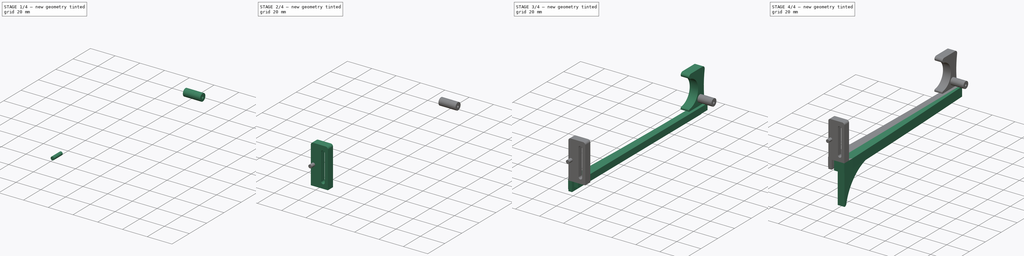
[diagram: build sequence overview — one tinted view per stage of 4, left to right]
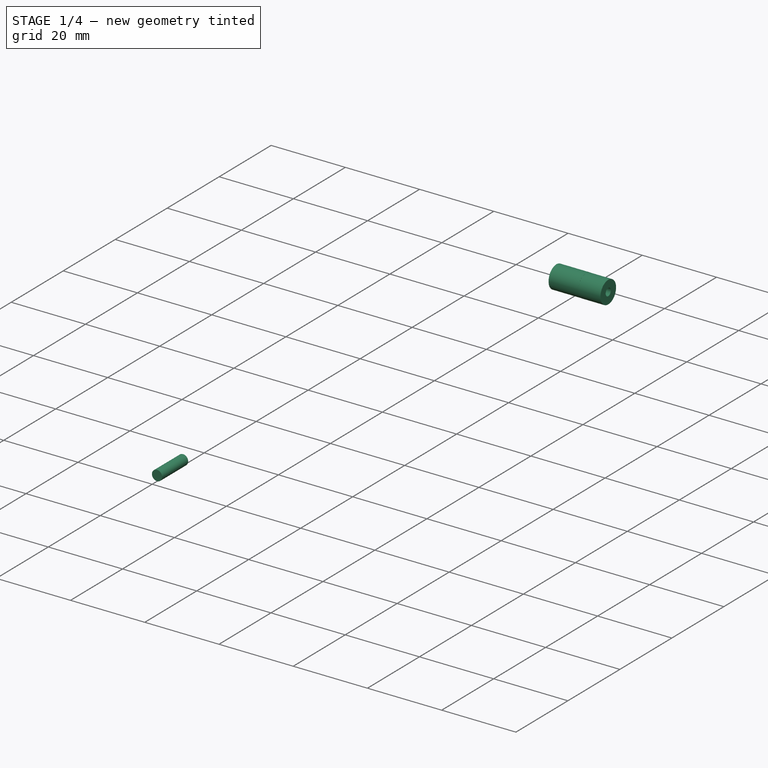
[diagram: stage 1 of 4 — iso view after this stage's code; geometry added in this stage tinted green]
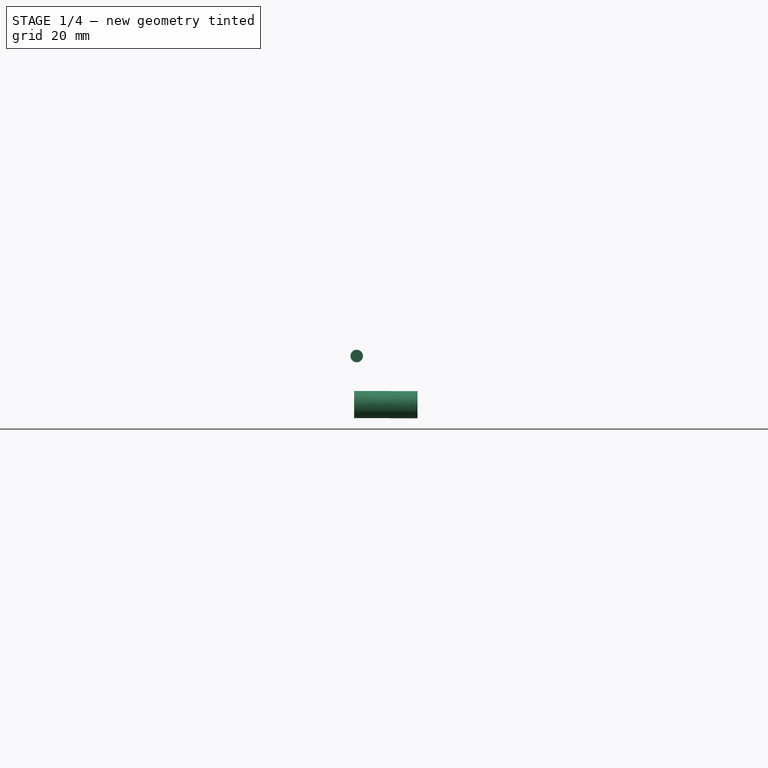
[diagram: stage 1 of 4 — front view after this stage's code; geometry added in this stage tinted green]
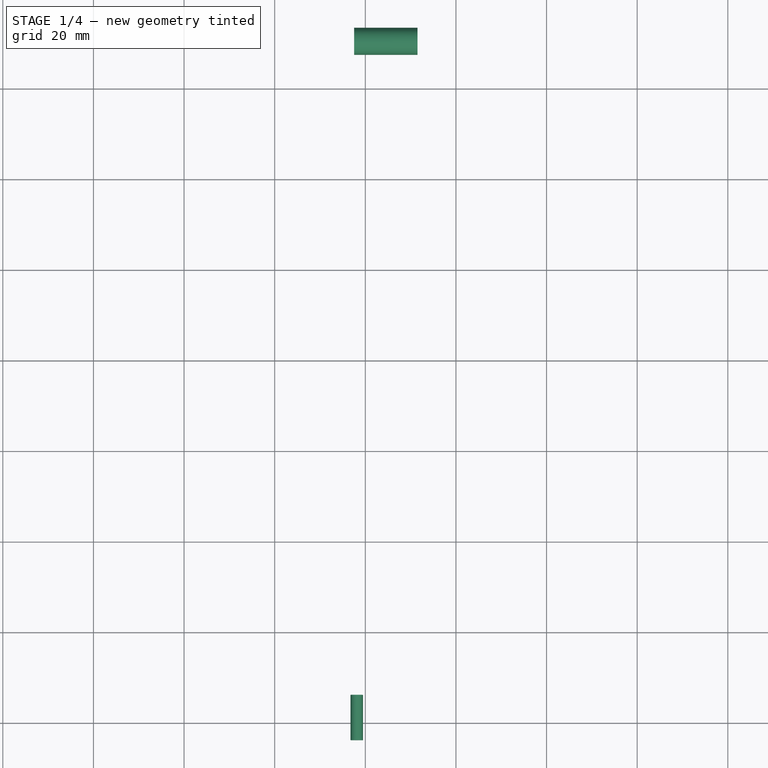
[diagram: stage 1 of 4 — top view after this stage's code; geometry added in this stage tinted green]
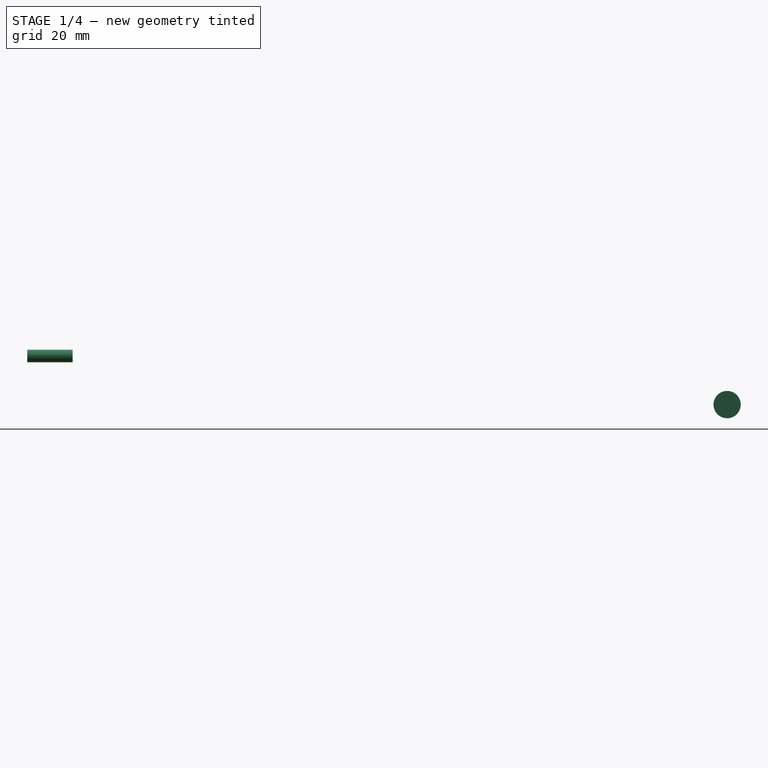
[diagram: stage 1 of 4 — right view after this stage's code; geometry added in this stage tinted green]
FCSTD DOCUMENT  (FreeCAD 0.20R29177 +426 (Git))
Label: Right_guide_drawing_515-1010
License: All rights reserved
LicenseURL: http://en.wikipedia.org/wiki/All_rights_reserved
objects: Sketcher::SketchObject×7, PartDesign::Pad×7, PartDesign::Body×4, App::DocumentObjectGroup×3, PartDesign::Fillet×2, Part::Cylinder×2, App::FeaturePython×1, PartDesign::CoordinateSystem×1, Part::Cut×1, Part::FeaturePython×1, Part::MultiFuse×1, App::Part×1
note: 35 computed .brp shape members not serialized (recipe doc carries the construction recipe); baked Part::Feature solids carry a one-line shape summary decoded from their .brp

FEATURE [Part::Cylinder] Cylinder002
  Angle = 360
  AttacherType = Attacher::AttachEngine3D
  FirstAngle = 0
  Height = 10
  Placement = pos=(-1.897,6.015,23.971) rot=(0.57735,-0.57735,0.57735;2.0944rad)
  Radius = 1.38
  SecondAngle = 0
FEATURE [Part::Cylinder] Cylinder
  Angle = 360
  AttacherType = Attacher::AttachEngine3D
  FirstAngle = 0
  Height = 8
  Placement = pos=(28.57,150.463,13.35) rot=(0,-1,0;1.5708rad)
  Radius = 3
  SecondAngle = 0
FEATURE [Part::FeaturePython] Tube  # WARN: FeaturePython — macro-defined, semantics opaque (R4)
  AttacherType = Attacher::AttachEngine3D
  Height = 6
  InnerRadius = 1
  OuterRadius = 3
  Placement = pos=(34.552,150.466,13.322) rot=(0.57735,0.57735,-0.57735;4.18879rad)
FEATURE [Part::MultiFuse] Fusion
  Placement = pos=(-23.031,0,-0.09) rot=(0,0,1;0rad)
  Shapes = -> [Tube,Cylinder]
FEATURE [App::DocumentObjectGroup] Parts
  Group = -> [Body003,Body004,Body007,Cut,Fusion]
FEATURE [App::Part] Assembly  label="rail_right"
  AssemblyType = Part::Link
  Group = -> [LCS_Origin,Constraints,Variables,Configurations,Body003,Body004,Parts,Body007,Pad004,Body009,Sketch012,Cylinder002,Tube,Cut,Cylinder,Fusion]
  Origin = -> Origin107
  Type = Assembly
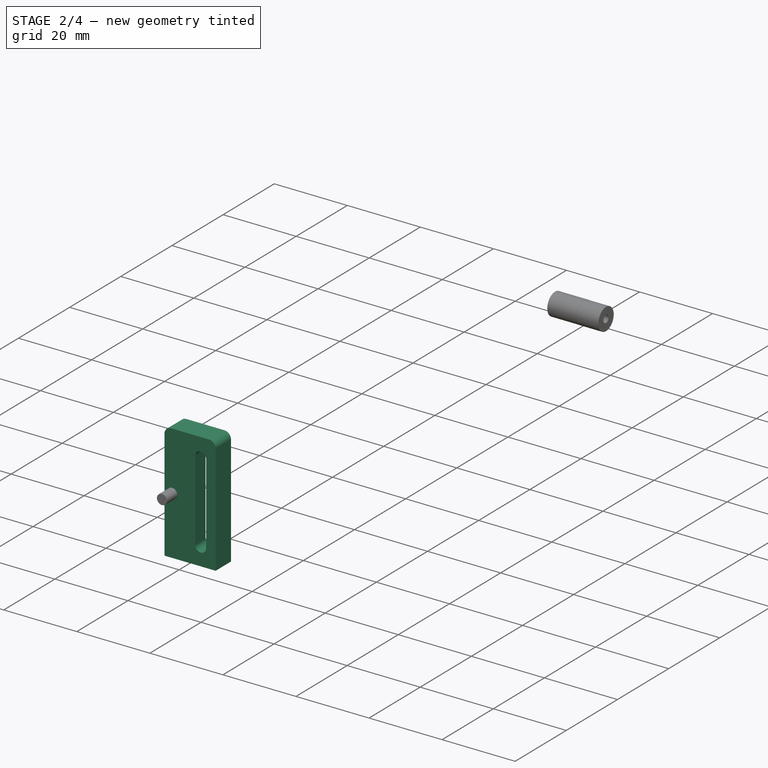
[diagram: stage 2 of 4 — iso view after this stage's code; geometry added in this stage tinted green]
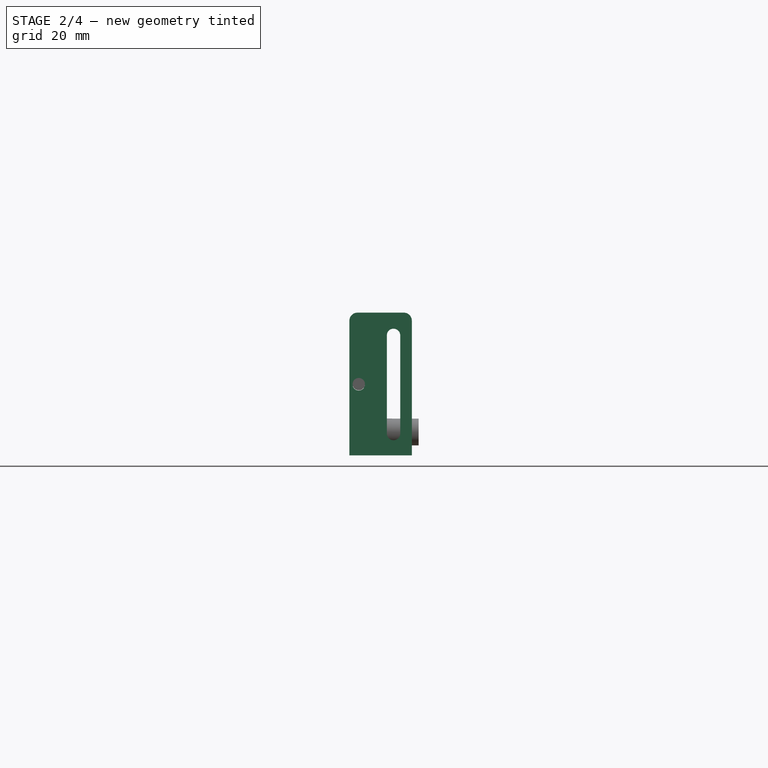
[diagram: stage 2 of 4 — front view after this stage's code; geometry added in this stage tinted green]
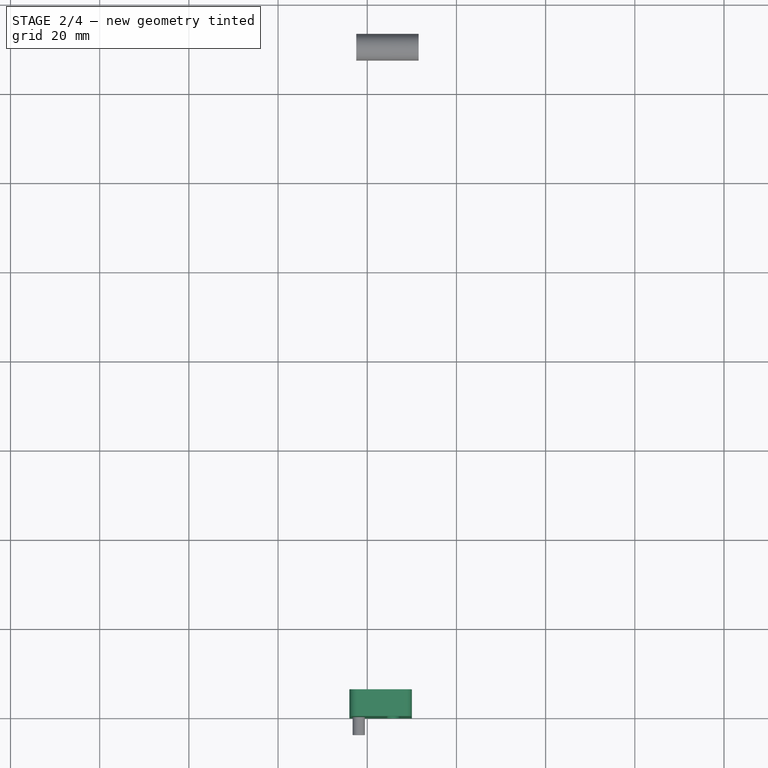
[diagram: stage 2 of 4 — top view after this stage's code; geometry added in this stage tinted green]
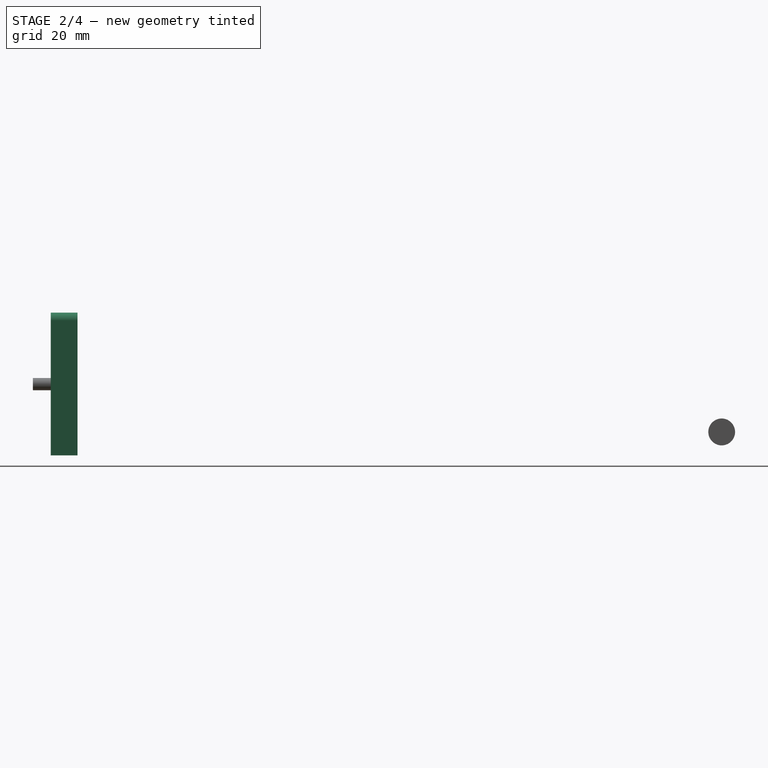
[diagram: stage 2 of 4 — right view after this stage's code; geometry added in this stage tinted green]
FEATURE [PartDesign::Body] Body003  label="rail"
  Group = -> [Sketch003,Pad,Sketch,Pad001,Sketch011,Pad003]
  Origin = -> Origin109
  Tip = -> Pad003
FEATURE [Sketcher::SketchObject] Sketch012
  FullyConstrained = true
  MapMode = 5
  Placement = pos=(0,0,0) rot=(1,0,0;1.5708rad)
  sketch-geometry (11):
    g0: LineSegment StartX=-4 StartY=0 StartZ=0 EndX=10 EndY=0 EndZ=0
    g1: LineSegment StartX=10 StartY=0 StartZ=0 EndX=10 EndY=-30.2 EndZ=0
    g2: LineSegment StartX=8.2 StartY=-32 StartZ=0 EndX=-2.2 EndY=-32 EndZ=0
    g3: LineSegment StartX=-4 StartY=-30.2 StartZ=0 EndX=-4 EndY=0 EndZ=0
    g4: ArcOfCircle CenterX=8.2 CenterY=-30.2 CenterZ=0 NormalX=0 NormalY=0 NormalZ=1 AngleXU=0 Radius=1.8 StartAngle=4.71239 EndAngle=6.28319
    g5: ArcOfCircle CenterX=-2.2 CenterY=-30.2 CenterZ=0 NormalX=0 NormalY=0 NormalZ=1 AngleXU=0 Radius=1.8 StartAngle=3.14159 EndAngle=4.71239
    g6: ArcOfCircle CenterX=5.9 CenterY=-26.9 CenterZ=0 NormalX=0 NormalY=0 NormalZ=1 AngleXU=0 Radius=1.5 StartAngle=3.14159 EndAngle=6.28319
    g7: ArcOfCircle CenterX=5.9 CenterY=-4.9 CenterZ=0 NormalX=0 NormalY=0 NormalZ=1 AngleXU=0 Radius=1.5 StartAngle=2e-16 EndAngle=3.14159
    g8: LineSegment StartX=7.4 StartY=-26.9 StartZ=0 EndX=7.4 EndY=-4.9 EndZ=0
    g9: LineSegment StartX=4.4 StartY=-4.9 StartZ=0 EndX=4.4 EndY=-26.9 EndZ=0
    g10: Circle CenterX=-1.9 CenterY=-15.9 CenterZ=0 NormalX=0 NormalY=0 NormalZ=1 AngleXU=0 Radius=1.375
  constraints (29):
    c: Coincident(g0,g1)
    c: Coincident(g3,g0)
    c: Horizontal(g0)
    c: Horizontal(g2)
    c: Vertical(g1)
    c: Vertical(g3)
    c: PointOnObject(g0,g-1)
    c: DistanceX(g0,g0) = 14
    c: DistanceX(g-1,g0) = 10
    c: Tangent(g2,g4) = 1.5708
    c: Tangent(g1,g4) = 1.5708
    c: Tangent(g3,g5) = 1.5708
    c: Tangent(g2,g5) = 1.5708
    c: DistanceY(g2,g1) = 1.8
    c: DistanceY(g2,g3) = 1.8
    c: Tangent(g6,g8) = -1.5708
    c: Tangent(g8,g7) = -1.5708
    c: Tangent(g7,g9) = -1.5708
    c: Tangent(g9,g6) = -1.5708
    c: Equal(g6,g7)
    c: Vertical(g8)
    c: DistanceX(g7,g7) = 3
    c: DistanceY(g6,g7) = 22
    c: DistanceY(g1,g1) = 30.2
    c: DistanceY(g7,g-1) = 4.9
    c: Diameter(g10) = 2.75
    c: DistanceY(g10,g7) = 11
    c: DistanceX(g0,g10) = 2.1
    c: DistanceX(g7,g0) = 4.1
FEATURE [PartDesign::Pad] Pad004  label="BaseGuide"
  Direction = (0,-1,-2e-16)
  Length = 6
  Length2 = 10
  Placement = pos=(0,0,0) rot=(1,0,0;1.5708rad)
  Profile = -> Sketch012
  ReferenceAxis = -> Sketch012 [N_Axis]
  Type = 0
FEATURE [PartDesign::Body] Body007  label="finger"
  Group = -> [Sketch019,Pad006]
  Origin = -> Origin114
  Placement = pos=(4.278,-0.01,-0.012) rot=(0,0,1;0rad)
  Tip = -> Pad006
FEATURE [Sketcher::SketchObject] Sketch020
  FullyConstrained = true
  MapMode = 5
  Placement = pos=(0,0,0) rot=(1,0,0;1.5708rad)
  Support = -> [XZ_Plane116]
  sketch-geometry (4):
    g0: ArcOfCircle CenterX=5.9 CenterY=35 CenterZ=0 NormalX=0 NormalY=0 NormalZ=1 AngleXU=0 Radius=3 StartAngle=4e-16 EndAngle=3.14159
    g1: ArcOfCircle CenterX=5.9 CenterY=13 CenterZ=0 NormalX=0 NormalY=0 NormalZ=1 AngleXU=0 Radius=3 StartAngle=3.14159 EndAngle=6.28319
    g2: LineSegment StartX=2.9 StartY=35 StartZ=0 EndX=2.9 EndY=13 EndZ=0
    g3: LineSegment StartX=8.9 StartY=13 StartZ=0 EndX=8.9 EndY=35 EndZ=0
  constraints (10):
    c: Tangent(g0,g2) = -1.5708
    c: Tangent(g2,g1) = -1.5708
    c: Tangent(g1,g3) = -1.5708
    c: Tangent(g3,g0) = -1.5708
    c: Equal(g0,g1)
    c: Vertical(g2)
    c: DistanceY(g1,g0) = 22
    c: DistanceX(g1,g1) = 6
    c: DistanceY(g-1,g1) = 13
    c: DistanceX(g-1,g1) = 5.9
FEATURE [PartDesign::Pad] Pad007
  Direction = (0,-1,-2e-16)
  Length = 2
  Length2 = 10
  Placement = pos=(0,0,0) rot=(1,0,0;1.5708rad)
  Profile = -> Sketch020
  ReferenceAxis = -> Sketch020 [N_Axis]
  Type = 0
FEATURE [PartDesign::Body] Body009  label="slotscrew"
  Group = -> [Sketch020,Pad007]
  Origin = -> Origin115
  Placement = pos=(-0.013,-4.05,-39.977) rot=(0,0,1;0rad)
  Tip = -> Pad007
FEATURE [Part::Cut] Cut  label="Base"
  Base = -> Pad004
  Placement = pos=(0,0.008,7.997) rot=(1,0,0;3.14159rad)
  Tool = -> Body009
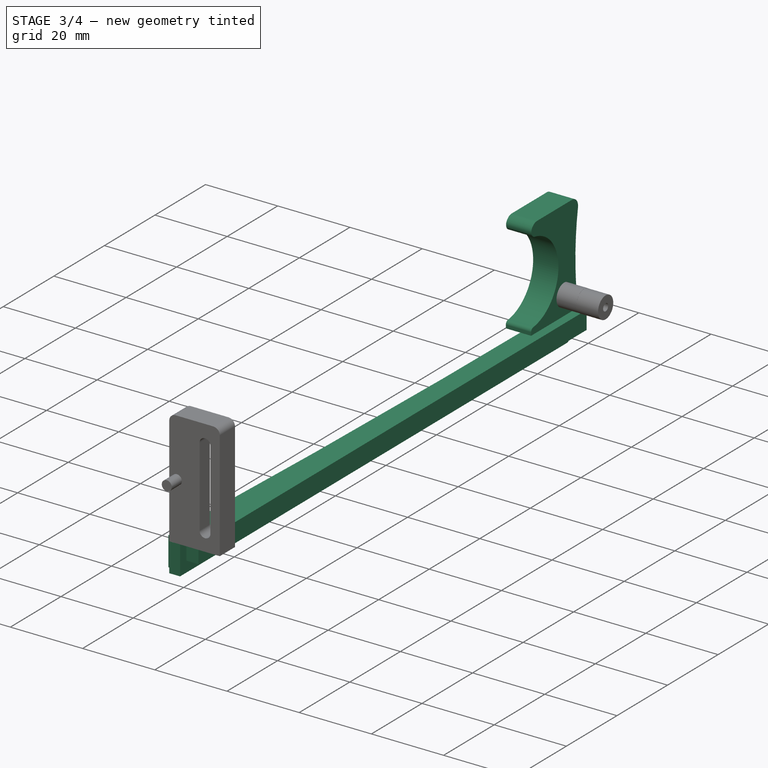
[diagram: stage 3 of 4 — iso view after this stage's code; geometry added in this stage tinted green]
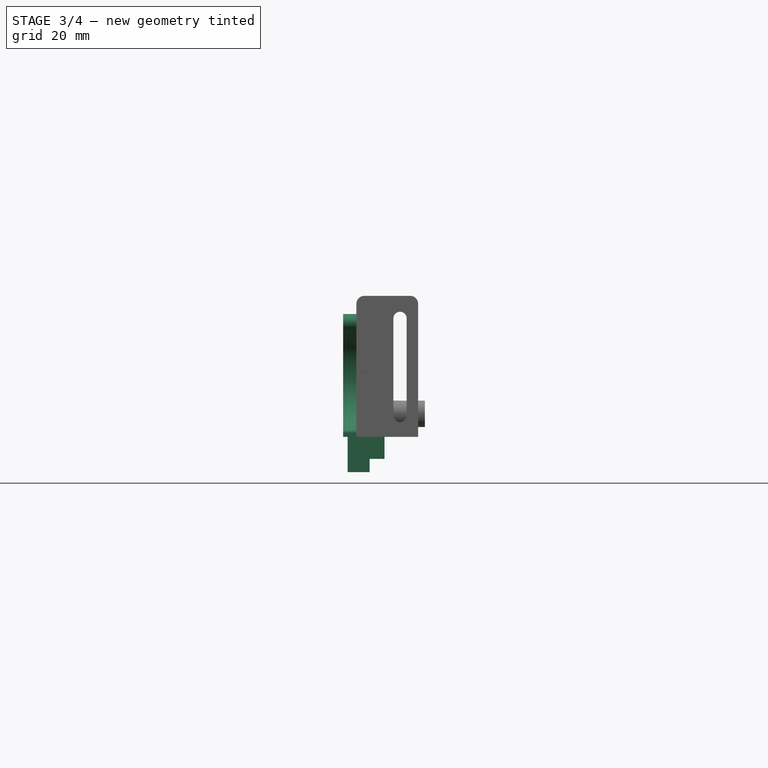
[diagram: stage 3 of 4 — front view after this stage's code; geometry added in this stage tinted green]
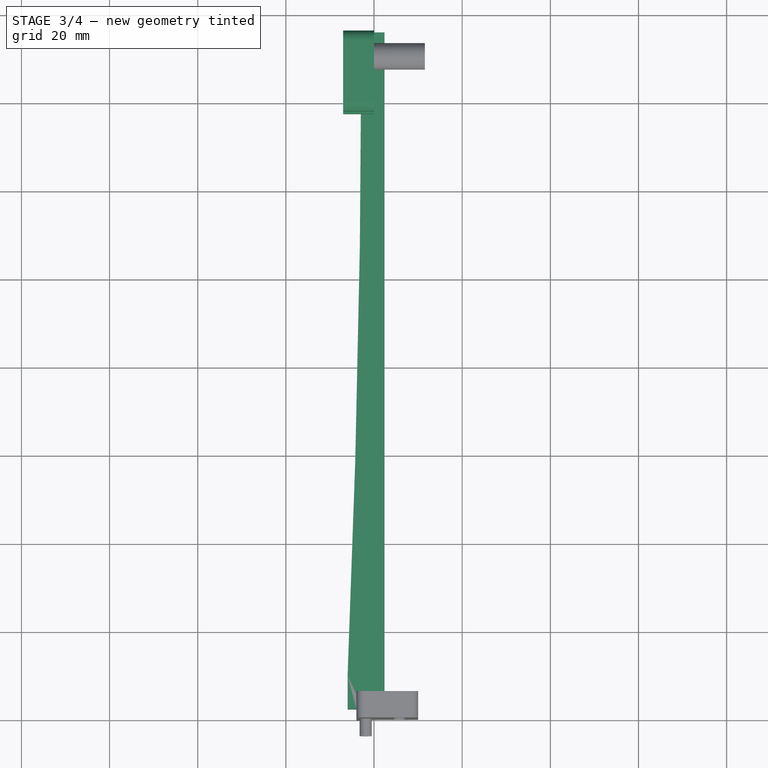
[diagram: stage 3 of 4 — top view after this stage's code; geometry added in this stage tinted green]
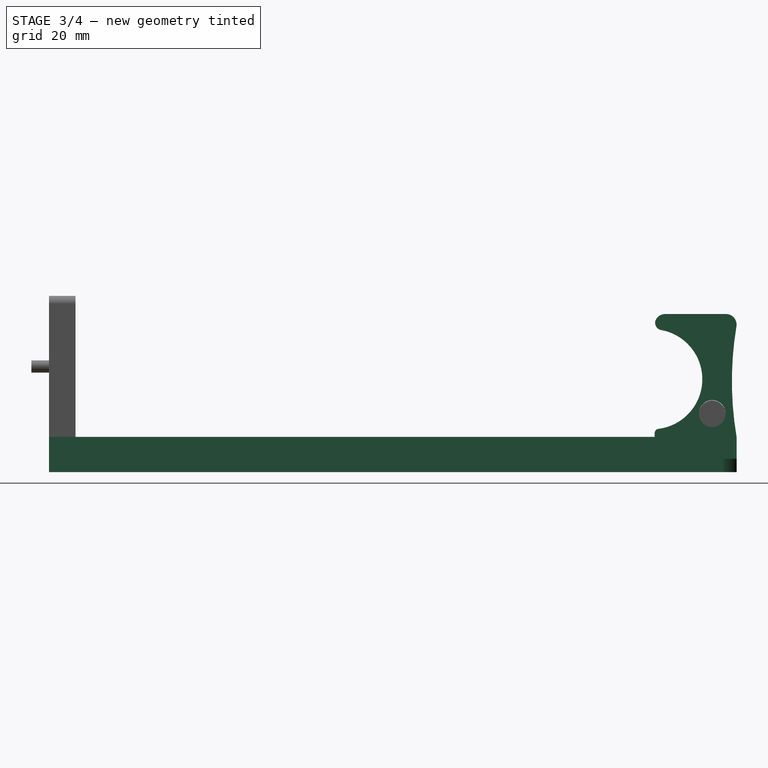
[diagram: stage 3 of 4 — right view after this stage's code; geometry added in this stage tinted green]
FEATURE [PartDesign::Body] Body004  label="sideforce"
  Group = -> [Sketch013,Pad005,Fillet,Fillet001]
  Origin = -> Origin110
  Placement = pos=(2,0,8) rot=(0,1,0;3.14159rad)
  Tip = -> Fillet001
FEATURE [Sketcher::SketchObject] Sketch003
  FullyConstrained = true
  MapMode = 5
  Support = -> [XY_Plane109]
  sketch-geometry (8):
    g0: LineSegment StartX=-1 StartY=0 StartZ=0 EndX=-1 EndY=153 EndZ=0
    g1: ArcOfCircle CenterX=-7.01053 CenterY=152.083 CenterZ=0 NormalX=0 NormalY=0 NormalZ=1 AngleXU=0 Radius=6.08 StartAngle=0.151318 EndAngle=0.699927
    g2: LineSegment StartX=-2.36 StartY=156 StartZ=0 EndX=-2.86 EndY=156 EndZ=0
    g3: ArcOfCircle CenterX=-3459.01 CenterY=157.297 CenterZ=0 NormalX=0 NormalY=0 NormalZ=1 AngleXU=0 Radius=3456.16 StartAngle=6.24055 EndAngle=6.28281
    g4: LineSegment StartX=-4 StartY=0 StartZ=0 EndX=-4 EndY=2.5 EndZ=0
    g5: LineSegment StartX=-4 StartY=2.5 StartZ=0 EndX=-6 EndY=2.5 EndZ=0
    g6: LineSegment StartX=-4 StartY=0 StartZ=0 EndX=-1 EndY=0 EndZ=0
    g7: LineSegment StartX=-6 StartY=10 StartZ=0 EndX=-6 EndY=2.5 EndZ=0
  constraints (27):
    c: Vertical(g0)
    c: Coincident(g1,g0)
    c: Coincident(g2,g1)
    c: Horizontal(g2)
    c: Coincident(g3,g2)
    c: DistanceX(g2,g2) = 0.5
    c: Diameter(g3) = 6912.31
    c: PointOnObject(g6,g-1)
    c: Vertical(g4)
    c: Coincident(g5,g4)
    c: Horizontal(g5)
    c: Coincident(g6,g4)
    c: Coincident(g7,g3)
    c: Coincident(g7,g5)
    c: DistanceX(g6,g6) = 3
    c: Vertical(g7)
    c: DistanceX(g5,g5) = 2
    c: DistanceY(g7,g7) = 7.5
    c: DistanceY(g4,g4) = 2.5
    c: DistanceY(g4,g-1) = 0
    c: DistanceY(g3,g2) = 146
    c: DistanceY(g0,g0) = 153
    c: DistanceX(g0,g-1) = 1
    c: DistanceX(g6,g-1) = 1
    c: DistanceY(g6,g0) = 0
    c: Radius(g1) = 6.08
    c: DistanceX(g1,g0) = 1.36
FEATURE [PartDesign::Pad] Pad
  Direction = (0,0,1)
  Length = 8
  Length2 = 10
  Profile = -> Sketch003
  ReferenceAxis = -> Sketch003 [N_Axis]
  Type = 0
FEATURE [Sketcher::SketchObject] Sketch
  AttachmentOffset = pos=(0,0,3) rot=(0,0,1;0rad)
  FullyConstrained = true
  MapMode = 5
  Placement = pos=(0,0,3) rot=(0,0,1;0rad)
  Support = -> [XY_Plane109]
  sketch-geometry (4):
    g0: LineSegment StartX=-2.36 StartY=2.5 StartZ=0 EndX=2.36 EndY=2.5 EndZ=0
    g1: LineSegment StartX=2.36 StartY=2.5 StartZ=0 EndX=2.36 EndY=156 EndZ=0
    g2: LineSegment StartX=2.36 StartY=156 StartZ=0 EndX=-2.36 EndY=156 EndZ=0
    g3: LineSegment StartX=-2.36 StartY=156 StartZ=0 EndX=-2.36 EndY=2.5 EndZ=0
  constraints (12):
    c: Coincident(g0,g1)
    c: Coincident(g1,g2)
    c: Coincident(g2,g3)
    c: Coincident(g3,g0)
    c: Horizontal(g0)
    c: Horizontal(g2)
    c: Vertical(g1)
    c: Vertical(g3)
    c: DistanceX(g2,g2) = 4.72
    c: DistanceY(g0,g-1) = -2.5
    c: DistanceX(g0,g-1) = 2.36
    c: DistanceY(g1,g1) = 153.5
FEATURE [PartDesign::Pad] Pad001
  BaseFeature = -> Pad
  Direction = (0,0,1)
  Length = 5
  Length2 = 10
  Profile = -> Sketch
  ReferenceAxis = -> Sketch [N_Axis]
  Type = 0
FEATURE [App::DocumentObjectGroup] Configurations
FEATURE [App::FeaturePython] Variables  # WARN: FeaturePython — macro-defined, semantics opaque (R4)
  Type = App::PropertyContainer
FEATURE [App::DocumentObjectGroup] Constraints
FEATURE [PartDesign::CoordinateSystem] LCS_Origin
  AttacherType = Attacher::AttachEngine3D
  MapMode = 2
  Support = -> [X_Axis107]
FEATURE [Sketcher::SketchObject] Sketch019
  FullyConstrained = false
  MapMode = 5
  Placement = pos=(0,0,0) rot=(-0.57735,0.57735,0.57735;4.18879rad)
  Support = -> [YZ_Plane114]
  sketch-geometry (10):
    g0: LineSegment StartX=-156.003 StartY=8.00103 StartZ=0 EndX=-137.423 EndY=8.00103 EndZ=0
    g1: LineSegment StartX=-137.423 StartY=8.00103 StartZ=0 EndX=-137.423 EndY=8.88796 EndZ=0
    g2: LineSegment StartX=-139.803 StartY=35.8702 StartZ=0 EndX=-153.603 EndY=35.8702 EndZ=0
    g3: ArcOfCircle CenterX=-136.888 CenterY=21.0784 CenterZ=0 NormalX=0 NormalY=0 NormalZ=1 AngleXU=0 Radius=11.34 StartAngle=1.74764 EndAngle=4.59202
    g4: ArcOfCircle CenterX=-153.603 CenterY=33.4702 CenterZ=0 NormalX=0 NormalY=0 NormalZ=1 AngleXU=0 Radius=2.4 StartAngle=1.5708 EndAngle=3.27078
    g5: ArcOfCircle CenterX=-139.803 CenterY=33.4702 CenterZ=0 NormalX=0 NormalY=0 NormalZ=1 AngleXU=0 Radius=2.4 StartAngle=0.566257 EndAngle=1.5708
    g6: ArcOfCircle CenterX=-230.704 CenterY=20.6405 CenterZ=0 NormalX=0 NormalY=0 NormalZ=1 AngleXU=0 Radius=75.763 StartAngle=6.11557 EndAngle=6.44921
    g7: Circle CenterX=-150.473 CenterY=13.3301 CenterZ=0 NormalX=0 NormalY=0 NormalZ=1 AngleXU=0 Radius=3
    g8: ArcOfCircle CenterX=-138.362 CenterY=8.88796 CenterZ=0 NormalX=0 NormalY=0 NormalZ=1 AngleXU=0 Radius=0.939281 StartAngle=0 EndAngle=1.45042
    g9: ArcOfCircle CenterX=-139.174 CenterY=33.8702 CenterZ=0 NormalX=0 NormalY=0 NormalZ=1 AngleXU=0 Radius=1.65446 StartAngle=4.88923 EndAngle=6.84944
  constraints (20):
    c: Coincident(g0,g1)
    c: Horizontal(g0)
    c: Horizontal(g2)
    c: Vertical(g1)
    c: Tangent(g2,g4) = -1.5708
    c: Tangent(g2,g5) = -1.5708
    c: Radius(g4) = 2.4
    c: Radius(g5) = 2.4
    c: DistanceX(g2,g2) = 13.8
    c: DistanceY(g0,g4) = 25.16
    c: DistanceX(g4,g2) = 2.38
    c: Radius(g3) = 11.34
    c: Coincident(g6,g0)
    c: Coincident(g6,g4)
    c: DistanceX(g0,g0) = 18.58
    c: Diameter(g7) = 6
    c: Tangent(g3,g8) = 1.5708
    c: Tangent(g1,g8) = -1.5708
    c: Tangent(g3,g9) = 1.5708
    c: Tangent(g5,g9) = -1.5708
FEATURE [PartDesign::Pad] Pad006
  Direction = (-1,2e-16,-3e-16)
  Length = 7
  Length2 = 10
  Placement = pos=(0,0,0) rot=(0.57735,0.57735,0.57735;2.0944rad)
  Profile = -> Sketch019
  ReferenceAxis = -> Sketch019 [N_Axis]
  Type = 0
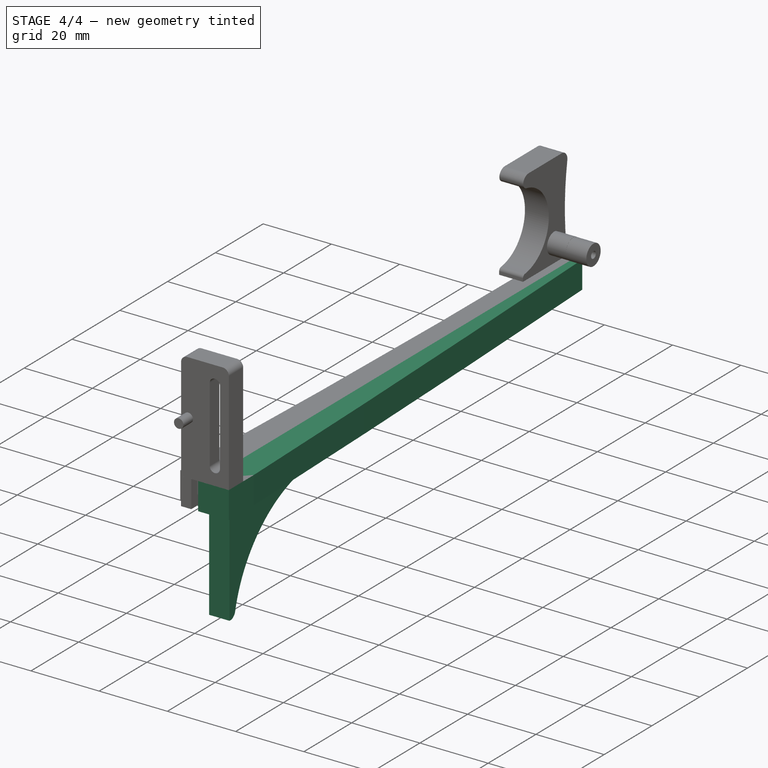
[diagram: stage 4 of 4 — iso view after this stage's code; geometry added in this stage tinted green]
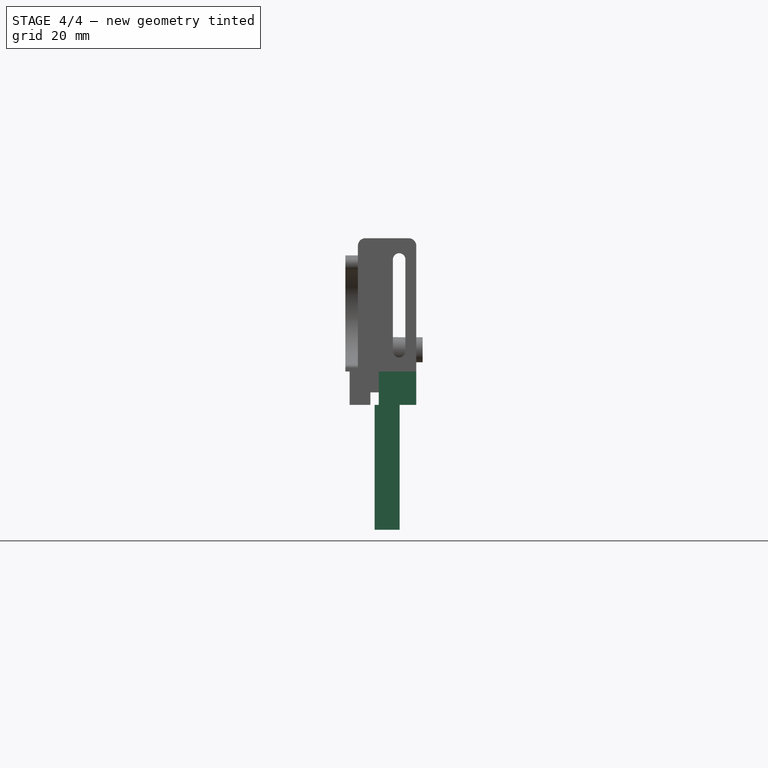
[diagram: stage 4 of 4 — front view after this stage's code; geometry added in this stage tinted green]
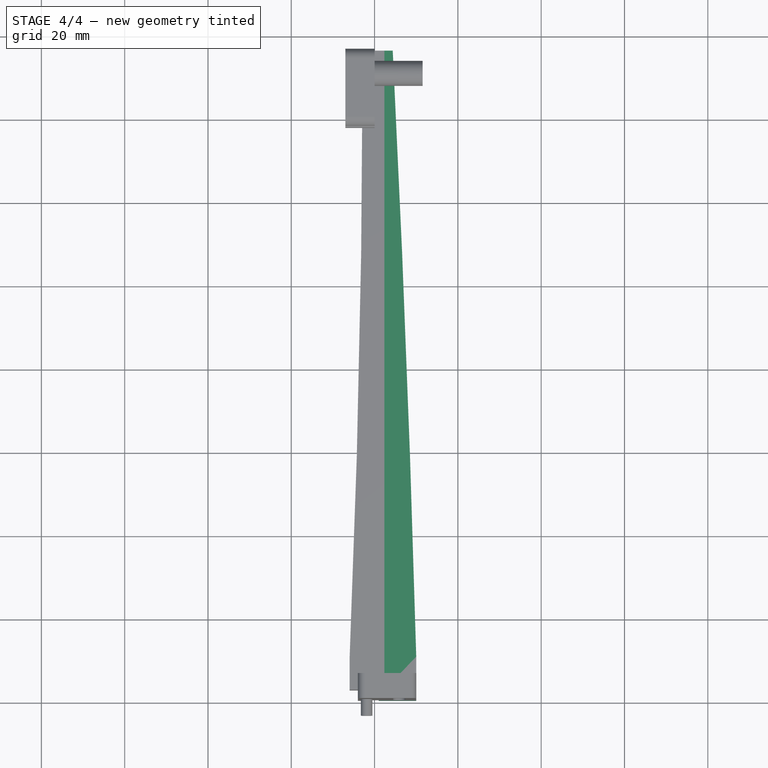
[diagram: stage 4 of 4 — top view after this stage's code; geometry added in this stage tinted green]
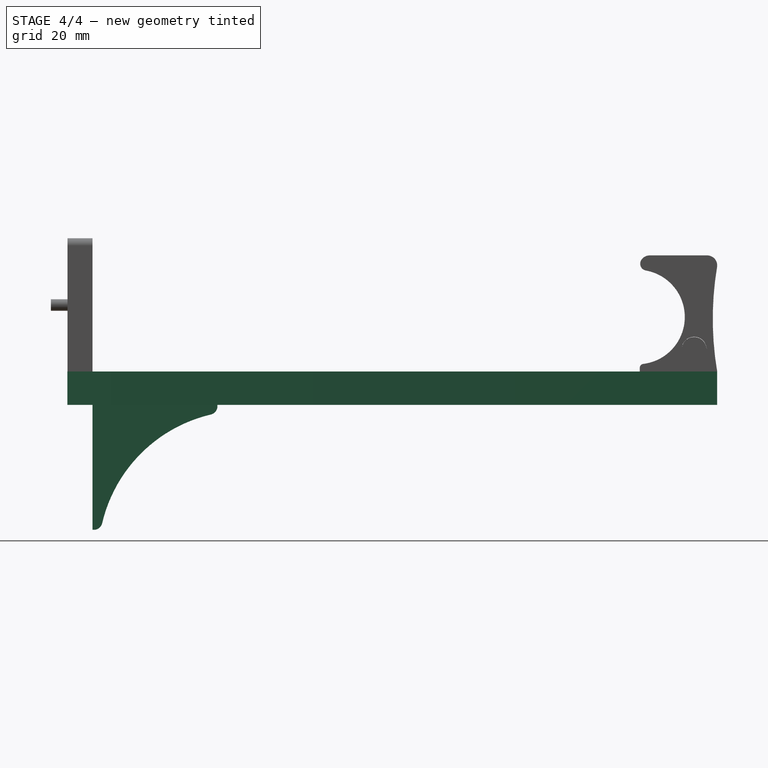
[diagram: stage 4 of 4 — right view after this stage's code; geometry added in this stage tinted green]
FEATURE [Sketcher::SketchObject] Sketch013
  FullyConstrained = false
  MapMode = 5
  Placement = pos=(0,0,0) rot=(0.57735,0.57735,0.57735;2.0944rad)
  Support = -> [YZ_Plane110]
  sketch-geometry (5):
    g0: LineSegment StartX=6.01175 StartY=0 StartZ=0 EndX=36.0118 EndY=0 EndZ=0
    g1: LineSegment StartX=36.0118 StartY=0 StartZ=0 EndX=36.0118 EndY=-2 EndZ=0
    g2: LineSegment StartX=8.01175 StartY=-30 StartZ=0 EndX=6.01175 EndY=-30 EndZ=0
    g3: LineSegment StartX=6.01175 StartY=-30 StartZ=0 EndX=6.01175 EndY=0 EndZ=0
    g4: ArcOfCircle CenterX=42.4201 CenterY=-36.4083 CenterZ=0 NormalX=0 NormalY=0 NormalZ=1 AngleXU=0 Radius=35 StartAngle=1.75493 EndAngle=2.95746
  constraints (14):
    c: Coincident(g0,g1)
    c: Coincident(g2,g3)
    c: Coincident(g3,g0)
    c: Horizontal(g0)
    c: Horizontal(g2)
    c: Vertical(g1)
    c: Vertical(g3)
    c: PointOnObject(g0,g-1)
    c: DistanceX(g0,g0) = 30
    c: Coincident(g1,g4)
    c: Coincident(g2,g4)
    c: DistanceY(g1,g1) = 2
    c: DistanceX(g2,g2) = 2
    c: Radius(g4) = 35
FEATURE [PartDesign::Pad] Pad005
  Direction = (1,-2e-16,3e-16)
  Length = 6
  Length2 = 10
  Placement = pos=(0,0,0) rot=(0.57735,0.57735,0.57735;2.0944rad)
  Profile = -> Sketch013
  ReferenceAxis = -> Sketch013 [N_Axis]
  Type = 0
FEATURE [PartDesign::Fillet] Fillet
  Base = -> Pad005 [Edge5]
  BaseFeature = -> Pad005
  Placement = pos=(0,0,0) rot=(0.57735,0.57735,0.57735;2.0944rad)
  Radius = 2
  SupportTransform = false
  UseAllEdges = false
FEATURE [PartDesign::Fillet] Fillet001
  Base = -> Fillet [Edge17]
  BaseFeature = -> Fillet
  Placement = pos=(0,0,0) rot=(0.57735,0.57735,0.57735;2.0944rad)
  Radius = 2
  SupportTransform = false
  UseAllEdges = false
FEATURE [Sketcher::SketchObject] Sketch011
  FullyConstrained = true
  MapMode = 5
  Support = -> [XY_Plane109]
  sketch-geometry (6):
    g0: LineSegment StartX=1 StartY=0 StartZ=0 EndX=10 EndY=0 EndZ=0
    g1: LineSegment StartX=4.36 StartY=156 StartZ=0 EndX=2.36 EndY=156 EndZ=0
    g2: LineSegment StartX=1 StartY=153 StartZ=0 EndX=1 EndY=0 EndZ=0
    g3: ArcOfCircle CenterX=7.01053 CenterY=152.083 CenterZ=0 NormalX=0 NormalY=0 NormalZ=1 AngleXU=0 Radius=6.08 StartAngle=2.44167 EndAngle=2.99027
    g4: LineSegment StartX=10 StartY=0 StartZ=0 EndX=10 EndY=10.5 EndZ=0
    g5: ArcOfCircle CenterX=-6386.74 CenterY=-164.597 CenterZ=0 NormalX=0 NormalY=0 NormalZ=1 AngleXU=0 Radius=6399.14 StartAngle=0.027366 EndAngle=0.050121
  constraints (20):
    c: Coincident(g2,g0)
    c: Horizontal(g0)
    c: Horizontal(g1)
    c: Vertical(g2)
    c: PointOnObject(g0,g-1)
    c: Coincident(g1,g3)
    c: Coincident(g2,g3)
    c: DistanceX(g2,g1) = 1.36
    c: DistanceY(g2,g1) = 3
    c: DistanceX(g1,g1) = 2
    c: DistanceX(g-1,g0) = 1
    c: DistanceY(g2,g2) = 153
    c: Radius(g3) = 6.08
    c: Coincident(g4,g0)
    c: DistanceY(g4,g4) = 10.5
    c: Coincident(g5,g4)
    c: Coincident(g5,g1)
    c: Radius(g5) = 6399.14
    c: DistanceX(g0,g0) = 9
    c: DistanceX(g-1,g4) = 10
FEATURE [PartDesign::Pad] Pad003
  BaseFeature = -> Pad001
  Direction = (0,0,1)
  Length = 8
  Length2 = 10
  Profile = -> Sketch011
  ReferenceAxis = -> Sketch011 [N_Axis]
  Type = 0
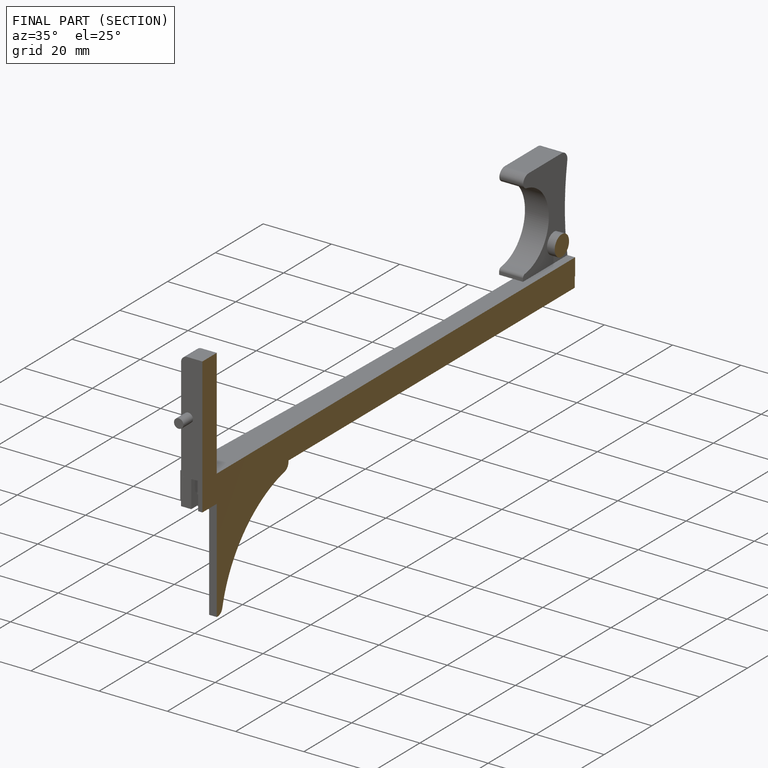
[diagram: finished part — half-section view (interior)]
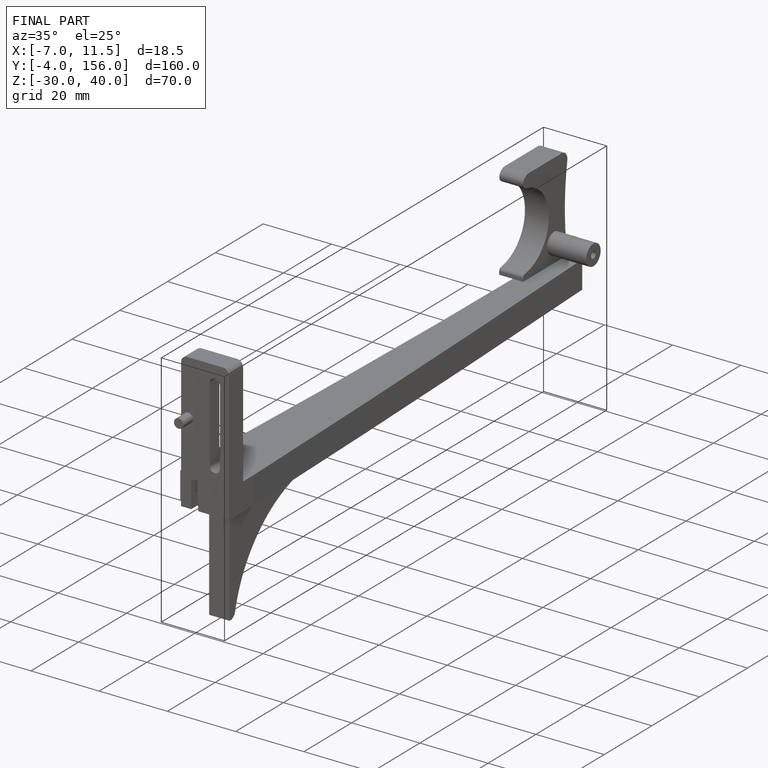
[diagram: finished part — iso view with bounding-box wireframe]
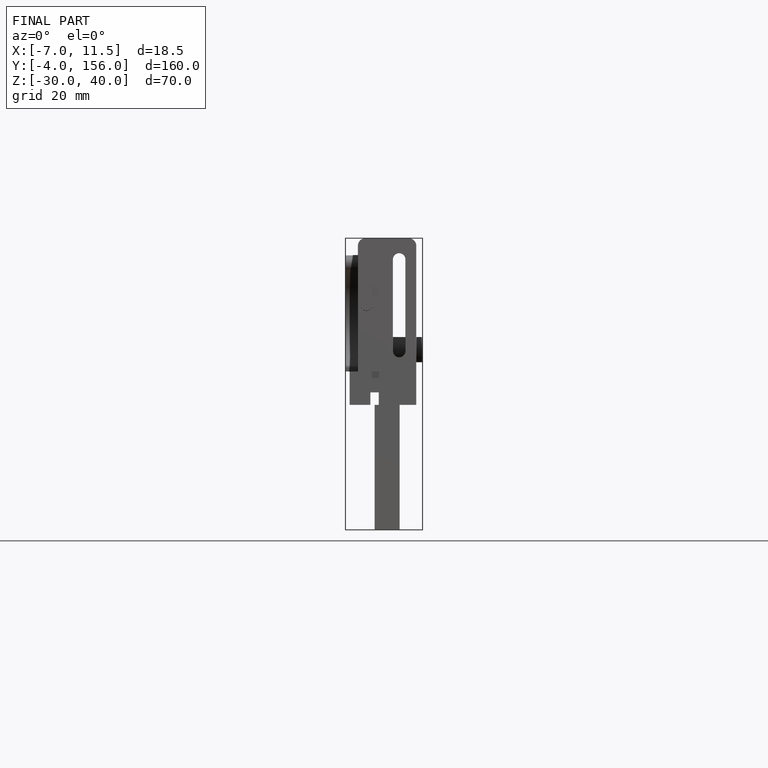
[diagram: finished part — front view with bounding-box wireframe]
